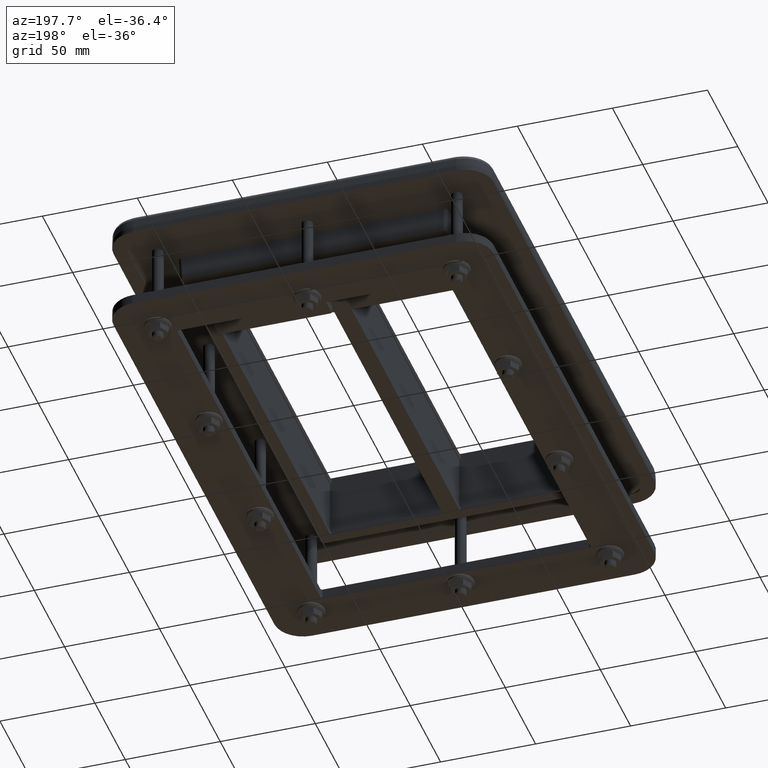
[diagram: clean part render]
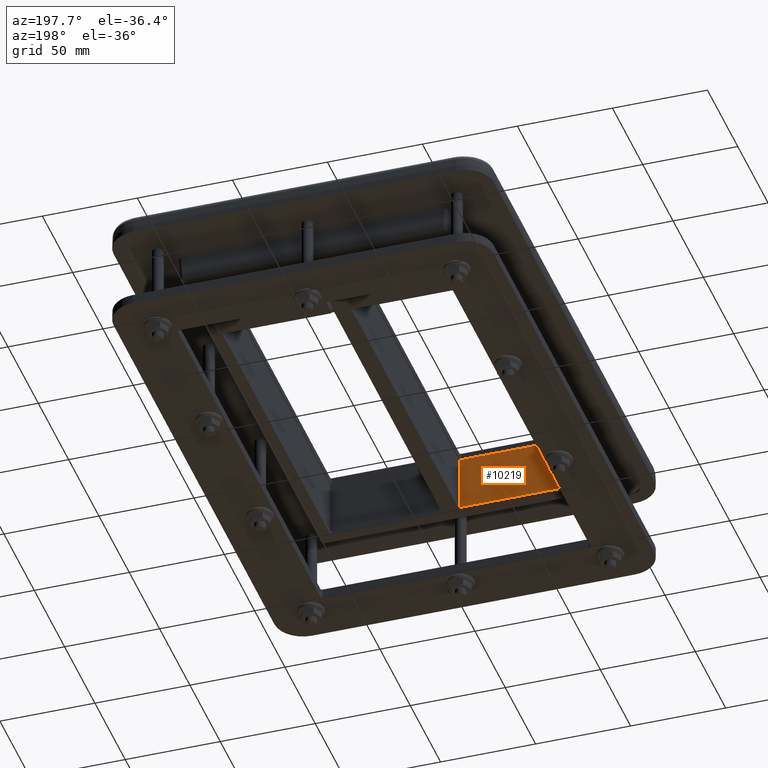
[diagram: same view with one face highlighted and labeled with its STEP entity id]
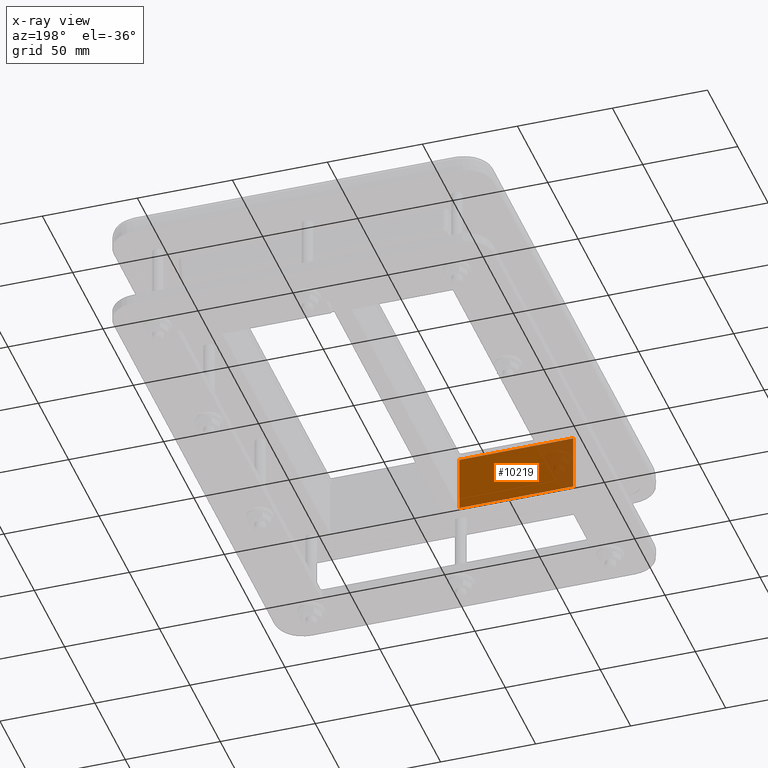
[diagram: x-ray of the same camera — body ghosted, the highlighted face saturated]
A machine part, auxiliary view. The second image highlights one B-rep face of the part: STEP entity #10219.
The next image is the same camera in x-ray: the body ghosted, the highlighted face saturated — about 22% of this face is hidden behind the body in this view.
In plain terms, the highlighted planar face has unit normal (0, -1, 0).
Its self-contained STEP definition (entity closure, byte-faithful):
#901=PLANE('',#11133);
#1400=FACE_OUTER_BOUND('',#2046,.T.);
#2046=EDGE_LOOP('',(#8499,#8500,#8501,#8502));
#2704=LINE('',#17985,#3344);
#2711=LINE('',#17999,#3351);
#2712=LINE('',#18001,#3352);
#2713=LINE('',#18002,#3353);
#3344=VECTOR('',#13376,10.);
#3351=VECTOR('',#13389,10.);
#3352=VECTOR('',#13390,10.);
#3353=VECTOR('',#13391,10.);
#4653=VERTEX_POINT('',#17982);
#4654=VERTEX_POINT('',#17984);
#4658=VERTEX_POINT('',#17998);
#4659=VERTEX_POINT('',#18000);
#5981=EDGE_CURVE('',#4654,#4653,#2704,.T.);
#5988=EDGE_CURVE('',#4653,#4658,#2711,.T.);
#5989=EDGE_CURVE('',#4658,#4659,#2712,.T.);
#5990=EDGE_CURVE('',#4654,#4659,#2713,.T.);
#8499=ORIENTED_EDGE('',*,*,#5981,.T.);
#8500=ORIENTED_EDGE('',*,*,#5988,.T.);
#8501=ORIENTED_EDGE('',*,*,#5989,.T.);
#8502=ORIENTED_EDGE('',*,*,#5990,.F.);
#10219=ADVANCED_FACE('',(#1400),#901,.F.);
#11133=AXIS2_PLACEMENT_3D('',#17997,#13387,#13388);
#13376=DIRECTION('',(-1.,-2.60071091613729E-16,0.));
#13387=DIRECTION('center_axis',(2.60071091613729E-16,-1.,0.));
#13388=DIRECTION('ref_axis',(1.,2.60071091613729E-16,-2.78089969391345E-32));
#13389=DIRECTION('',(0.,0.,1.));
#13390=DIRECTION('',(1.,2.60071091613729E-16,-2.78089969391345E-32));
#13391=DIRECTION('',(0.,0.,1.));
#17982=CARTESIAN_POINT('',(-64.,-111.5,-30.));
#17984=CARTESIAN_POINT('',(-4.,-111.5,-30.));
#17985=CARTESIAN_POINT('',(-49.,-111.5,-30.));
#17997=CARTESIAN_POINT('Origin',(-64.,-111.5,-30.));
#17998=CARTESIAN_POINT('',(-64.,-111.5,-1.66533453693773E-15));
#17999=CARTESIAN_POINT('',(-64.,-111.5,-30.));
#18000=CARTESIAN_POINT('',(-4.00000000000001,-111.5,-1.66533453693773E-15));
#18001=CARTESIAN_POINT('',(-4.00000000000002,-111.5,-1.66533453693773E-15));
#18002=CARTESIAN_POINT('',(-4.00000000000001,-111.5,-30.));